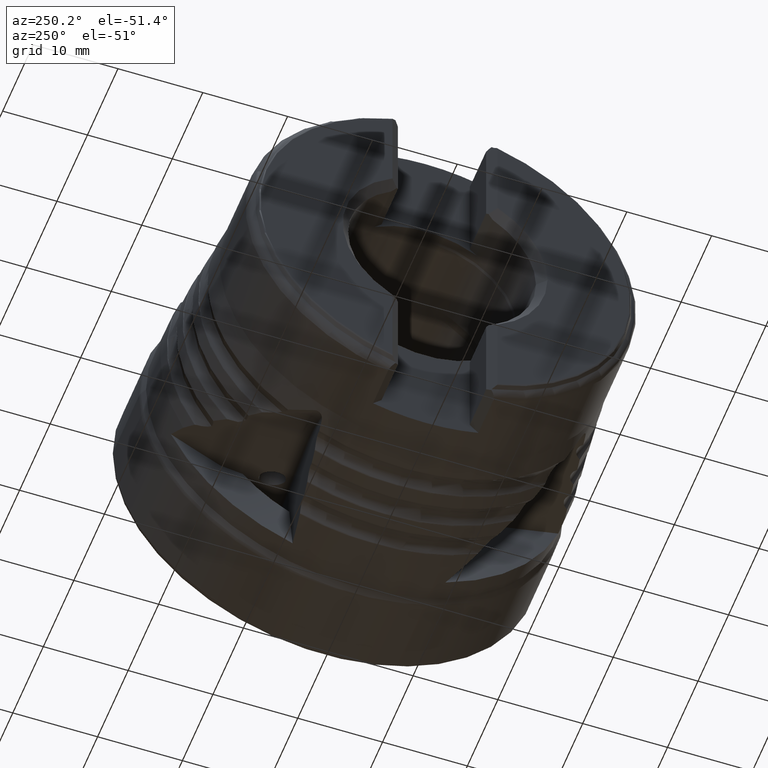
[diagram: clean part render]
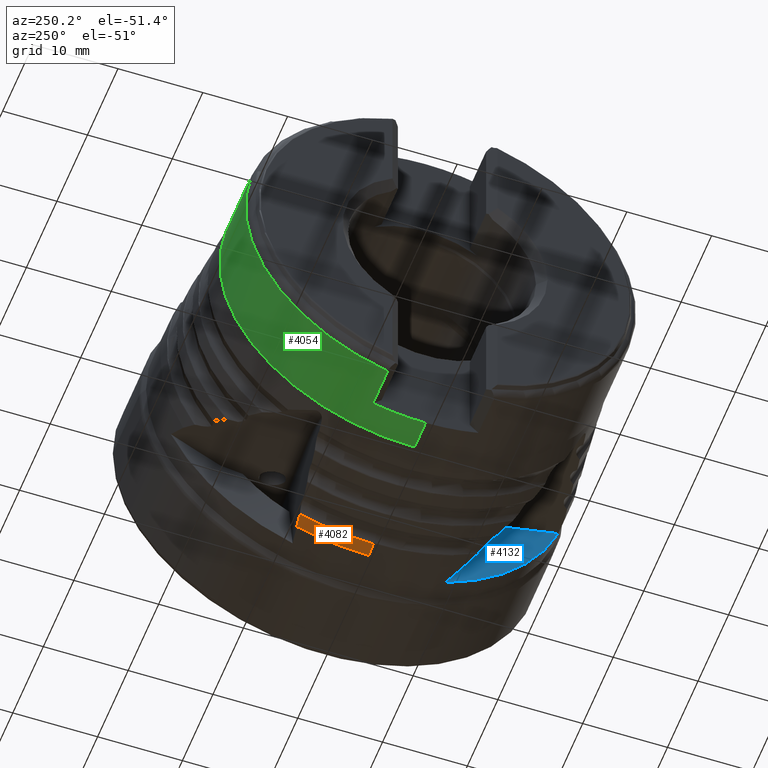
[diagram: same view with three faces highlighted in distinct colors, each labeled with its STEP entity id]
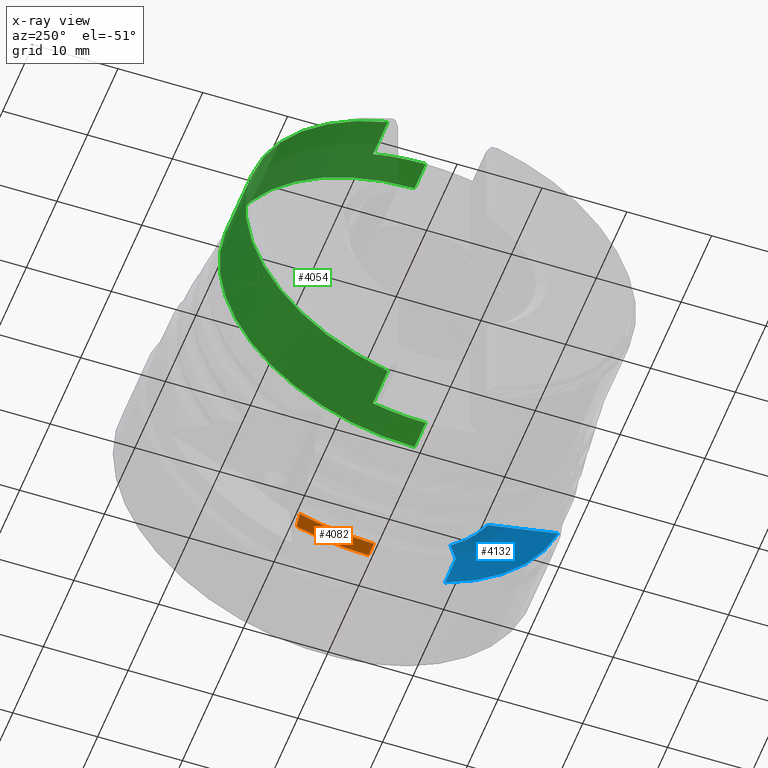
[diagram: x-ray of the same camera — body ghosted, the three highlighted faces saturated]
A machine part, auxiliary view with three faces highlighted in distinct colors.
The next image is the same camera in x-ray (body ghosted, the three faces saturated) — at least one of them is partly hidden behind the body in this view.
Their STEP definitions:

[orange] entity #4082 — the highlighted conical surface has half-angle 5.994 deg.
#51 = DIRECTION ( 'NONE',  ( 1.000000000000000000, -0.0000000000000000000, -0.0000000000000000000 ) ) ;
#117 = DIRECTION ( 'NONE',  ( 0.0000000000000000000, 0.0000000000000000000, -1.000000000000000000 ) ) ;
#225 = CARTESIAN_POINT ( 'NONE',  ( -13.24999999999999800, 0.0000000000000000000, 0.0000000000000000000 ) ) ;
#1017 = CARTESIAN_POINT ( 'NONE',  ( -14.85037459597313800, 0.0000000000000000000, 0.0000000000000000000 ) ) ;
#1019 = DIRECTION ( 'NONE',  ( 1.000000000000000000, -0.0000000000000000000, -0.0000000000000000000 ) ) ;
#1020 = DIRECTION ( 'NONE',  ( 0.0000000000000000000, 0.0000000000000000000, -1.000000000000000000 ) ) ;
#1125 = EDGE_CURVE ( 'NONE', #4530, #4624, #3073, .T. ) ;
#1241 = EDGE_CURVE ( 'NONE', #4624, #3803, #5999, .T. ) ;
#1885 = CARTESIAN_POINT ( 'NONE',  ( -14.85037459597314900, 8.707415521073281500, -22.80089129758956900 ) ) ;
#2139 = FACE_OUTER_BOUND ( 'NONE', #3028, .T. ) ;
#2141 = DIRECTION ( 'NONE',  ( 0.0000000000000000000, 0.0000000000000000000, -1.000000000000000000 ) ) ;
#2143 = CARTESIAN_POINT ( 'NONE',  ( -13.24999999999999800, 0.0000000000000000000, 0.0000000000000000000 ) ) ;
#2144 = DIRECTION ( 'NONE',  ( 1.000000000000000000, -0.0000000000000000000, -0.0000000000000000000 ) ) ;
#3028 = EDGE_LOOP ( 'NONE', ( #5594, #5584, #5321, #5596 ) ) ;
#3073 = CIRCLE ( 'NONE', #3080, 24.57499999999999900 ) ;
#3080 = AXIS2_PLACEMENT_3D ( 'NONE', #225, #51, #117 ) ;
#3305 = CIRCLE ( 'NONE', #3306, 24.40696066742281900 ) ;
#3306 = AXIS2_PLACEMENT_3D ( 'NONE', #1017, #1019, #1020 ) ;
#3566 = VECTOR ( 'NONE', #6466, 1000.000000000000000 ) ;
#3803 = VERTEX_POINT ( 'NONE', #1885 ) ;
#4082 = ADVANCED_FACE ( 'NONE', ( #2139 ), #4918, .T. ) ;
#4233 = EDGE_CURVE ( 'NONE', #4755, #3803, #3305, .T. ) ;
#4397 = EDGE_CURVE ( 'NONE', #4755, #4530, #6463, .T. ) ;
#4530 = VERTEX_POINT ( 'NONE', #6842 ) ;
#4624 = VERTEX_POINT ( 'NONE', #6925 ) ;
#4755 = VERTEX_POINT ( 'NONE', #7048 ) ;
#4918 = CONICAL_SURFACE ( 'NONE', #4919, 24.57499999999999900, 0.1046166576325194700 ) ;
#4919 = AXIS2_PLACEMENT_3D ( 'NONE', #2143, #2144, #2141 ) ;
#5321 = ORIENTED_EDGE ( 'NONE', *, *, #1241, .F. ) ;
#5584 = ORIENTED_EDGE ( 'NONE', *, *, #4233, .T. ) ;
#5594 = ORIENTED_EDGE ( 'NONE', *, *, #4397, .F. ) ;
#5596 = ORIENTED_EDGE ( 'NONE', *, *, #1125, .F. ) ;
#5750 = CARTESIAN_POINT ( 'NONE',  ( -14.85037459597314900, 8.707415521073281500, -22.80089129758956900 ) ) ;
#5752 = CARTESIAN_POINT ( 'NONE',  ( -14.31998503656541300, 8.632874129676684700, -22.88897156336772200 ) ) ;
#5850 = CARTESIAN_POINT ( 'NONE',  ( -13.24999999999999800, 8.482497539518695000, -23.06464524964689400 ) ) ;
#5887 = CARTESIAN_POINT ( 'NONE',  ( -13.78652494861643500, 8.557901203635918100, -22.97688985875644700 ) ) ;
#5999 =( BOUNDED_CURVE ( )  B_SPLINE_CURVE ( 3, ( #5850, #5887, #5752, #5750 ),
 .UNSPECIFIED., .F., .T. ) 
 B_SPLINE_CURVE_WITH_KNOTS ( ( 4, 4 ),
 ( 2.622664883302792600, 2.629184008231002100 ),
 .UNSPECIFIED. ) 
 CURVE ( )  GEOMETRIC_REPRESENTATION_ITEM ( )  RATIONAL_B_SPLINE_CURVE ( ( 1.000000000000000000, 0.9999964584206498800, 0.9999964584206498800, 1.000000000000000000 ) ) 
 REPRESENTATION_ITEM ( '' )  );
#6463 = LINE ( 'NONE', #6465, #3566 ) ;
#6465 = CARTESIAN_POINT ( 'NONE',  ( -13.24999999999999800, 0.0000000000000000000, -24.57499999999999900 ) ) ;
#6466 = DIRECTION ( 'NONE',  ( 0.9945326667047195100, 0.0000000000000000000, -0.1044259300039953000 ) ) ;
#6842 = CARTESIAN_POINT ( 'NONE',  ( -13.24999999999999800, 0.0000000000000000000, -24.57499999999999900 ) ) ;
#6925 = CARTESIAN_POINT ( 'NONE',  ( -13.24999999999999800, 8.482497539518695000, -23.06464524964689400 ) ) ;
#7048 = CARTESIAN_POINT ( 'NONE',  ( -14.85037459597313800, 0.0000000000000000000, -24.40696066742281900 ) ) ;

[blue] entity #4132 — the highlighted conical surface has half-angle 76.692 deg.
#510 = DIRECTION ( 'NONE',  ( 1.994636483349029900E-016, -1.000000000000000000, 0.0000000000000000000 ) ) ;
#511 = CARTESIAN_POINT ( 'NONE',  ( -9.249831501240239000, -1.699793255195587400E-015, 0.0000000000000000000 ) ) ;
#512 = FACE_OUTER_BOUND ( 'NONE', #3517, .T. ) ;
#513 = DIRECTION ( 'NONE',  ( -1.000000000000000000, -1.837647804684523300E-016, 0.0000000000000000000 ) ) ;
#842 = CARTESIAN_POINT ( 'NONE',  ( -10.94843701026711700, -9.865082947663816900, -22.50801553748602800 ) ) ;
#843 = CARTESIAN_POINT ( 'NONE',  ( -10.54843722114352300, -10.39052280309547300, -20.43136244012167400 ) ) ;
#849 = CARTESIAN_POINT ( 'NONE',  ( -10.17286608480709000, -10.92799351553216200, -18.35366992663220000 ) ) ;
#850 = CARTESIAN_POINT ( 'NONE',  ( -9.847697884642899500, -11.49028714894632800, -16.27383281576901200 ) ) ;
#1171 = EDGE_CURVE ( 'NONE', #4711, #6078, #3275, .T. ) ;
#1210 = EDGE_CURVE ( 'NONE', #6124, #3854, #3109, .T. ) ;
#1272 = EDGE_CURVE ( 'NONE', #6124, #4601, #3287, .T. ) ;
#1395 = EDGE_CURVE ( 'NONE', #4601, #4711, #4774, .T. ) ;
#1934 = CARTESIAN_POINT ( 'NONE',  ( -10.94843701026711700, -9.865082947663816900, -22.50801553748602800 ) ) ;
#2438 = DIRECTION ( 'NONE',  ( 1.000000000000000000, 1.837647804684523300E-016, -0.0000000000000000000 ) ) ;
#2440 = CARTESIAN_POINT ( 'NONE',  ( -9.249831501240239000, -1.699793255195587400E-015, 0.0000000000000000000 ) ) ;
#2443 = DIRECTION ( 'NONE',  ( -1.994636483349029900E-016, 1.000000000000000000, 0.0000000000000000000 ) ) ;
#3109 = CIRCLE ( 'NONE', #3110, 24.57499999999999600 ) ;
#3110 = AXIS2_PLACEMENT_3D ( 'NONE', #3942, #3943, #3915 ) ;
#3187 = B_SPLINE_CURVE_WITH_KNOTS ( 'NONE', 3,
 ( #842, #843, #849, #850 ),
 .UNSPECIFIED., .F., .F.,
 ( 4, 4 ),
 ( 1.089292357051355200E-006, 0.006536910612463925900 ),
 .UNSPECIFIED. ) ;
#3275 = B_SPLINE_CURVE_WITH_KNOTS ( 'NONE', 3,
 ( #3972, #3963, #3977, #4005 ),
 .UNSPECIFIED., .F., .F.,
 ( 4, 4 ),
 ( 1.009171873679634600E-006, 0.002950027775403416900 ),
 .UNSPECIFIED. ) ;
#3287 = B_SPLINE_CURVE_WITH_KNOTS ( 'NONE', 3,
 ( #5688, #5949, #5947, #5911 ),
 .UNSPECIFIED., .F., .F.,
 ( 4, 4 ),
 ( 9.091867728187631100E-007, 0.007884826801722711800 ),
 .UNSPECIFIED. ) ;
#3517 = EDGE_LOOP ( 'NONE', ( #5041, #5165, #5068, #5239, #5244 ) ) ;
#3854 = VERTEX_POINT ( 'NONE', #1934 ) ;
#3915 = DIRECTION ( 'NONE',  ( -2.117668536289083300E-016, 1.000000000000000000, 0.0000000000000000000 ) ) ;
#3942 = CARTESIAN_POINT ( 'NONE',  ( -10.94843701026711900, -2.011937123664415700E-015, 0.0000000000000000000 ) ) ;
#3943 = DIRECTION ( 'NONE',  ( 1.000000000000000000, 1.837647804684523300E-016, -0.0000000000000000000 ) ) ;
#3963 = CARTESIAN_POINT ( 'NONE',  ( -9.444647694032756400, -11.20798271432414200, -14.37039879415960700 ) ) ;
#3972 = CARTESIAN_POINT ( 'NONE',  ( -9.249831501240237200, -11.06954732527783500, -13.41686313321636300 ) ) ;
#3977 = CARTESIAN_POINT ( 'NONE',  ( -9.644537763475831600, -11.34847281373037100, -15.32255902798102400 ) ) ;
#4005 = CARTESIAN_POINT ( 'NONE',  ( -9.847697884642899500, -11.49028714894632800, -16.27383281576901200 ) ) ;
#4132 = ADVANCED_FACE ( 'NONE', ( #512 ), #4999, .F. ) ;
#4206 = EDGE_CURVE ( 'NONE', #3854, #6078, #3187, .T. ) ;
#4601 = VERTEX_POINT ( 'NONE', #6904 ) ;
#4711 = VERTEX_POINT ( 'NONE', #7013 ) ;
#4774 = CIRCLE ( 'NONE', #4776, 17.39388094480429500 ) ;
#4776 = AXIS2_PLACEMENT_3D ( 'NONE', #2440, #2438, #2443 ) ;
#4999 = CONICAL_SURFACE ( 'NONE', #5000, 17.39388094480429500, 1.338527625122639900 ) ;
#5000 = AXIS2_PLACEMENT_3D ( 'NONE', #511, #513, #510 ) ;
#5041 = ORIENTED_EDGE ( 'NONE', *, *, #1210, .F. ) ;
#5068 = ORIENTED_EDGE ( 'NONE', *, *, #1395, .T. ) ;
#5165 = ORIENTED_EDGE ( 'NONE', *, *, #1272, .T. ) ;
#5239 = ORIENTED_EDGE ( 'NONE', *, *, #1171, .T. ) ;
#5244 = ORIENTED_EDGE ( 'NONE', *, *, #4206, .F. ) ;
#5688 = CARTESIAN_POINT ( 'NONE',  ( -10.94843701026711500, -23.18104376225869600, -8.159033955821414000 ) ) ;
#5911 = CARTESIAN_POINT ( 'NONE',  ( -9.249831501240235500, -15.48598642620871000, -7.920310519752716200 ) ) ;
#5947 = CARTESIAN_POINT ( 'NONE',  ( -9.799121603711856900, -18.05481236139974800, -7.997508209247834900 ) ) ;
#5949 = CARTESIAN_POINT ( 'NONE',  ( -10.37034497178684600, -20.61870112903439200, -8.077788418198595700 ) ) ;
#6078 = VERTEX_POINT ( 'NONE', #7076 ) ;
#6124 = VERTEX_POINT ( 'NONE', #7081 ) ;
#6904 = CARTESIAN_POINT ( 'NONE',  ( -9.249831501240235500, -15.48598642620871000, -7.920310519752716200 ) ) ;
#7013 = CARTESIAN_POINT ( 'NONE',  ( -9.249831501240237200, -11.06954732527783500, -13.41686313321636300 ) ) ;
#7076 = CARTESIAN_POINT ( 'NONE',  ( -9.847697884642899500, -11.49028714894632800, -16.27383281576901200 ) ) ;
#7081 = CARTESIAN_POINT ( 'NONE',  ( -10.94843701026711500, -23.18104376225869600, -8.159033955821414000 ) ) ;

[green] entity #4054 — the highlighted cylindrical surface (partial cylindrical patch) has radius 23 mm, axis along (1, -0, -0).
#11 = DIRECTION ( 'NONE',  ( 0.0000000000000000000, 0.0000000000000000000, -1.000000000000000000 ) ) ;
#18 = CARTESIAN_POINT ( 'NONE',  ( -28.24999999999999600, 0.0000000000000000000, 0.0000000000000000000 ) ) ;
#32 = DIRECTION ( 'NONE',  ( 1.000000000000000000, -0.0000000000000000000, -0.0000000000000000000 ) ) ;
#82 = CARTESIAN_POINT ( 'NONE',  ( 9.758495738851982800E-016, 6.208772319603620600, -22.14613163248434100 ) ) ;
#89 = DIRECTION ( 'NONE',  ( 1.000000000000000000, -0.0000000000000000000, -0.0000000000000000000 ) ) ;
#94 = DIRECTION ( 'NONE',  ( 0.0000000000000000000, 0.0000000000000000000, 1.000000000000000000 ) ) ;
#131 = DIRECTION ( 'NONE',  ( 1.000000000000000000, -0.0000000000000000000, -0.0000000000000000000 ) ) ;
#145 = CARTESIAN_POINT ( 'NONE',  ( -31.90000000000004100, 0.0000000000000000000, 0.0000000000000000000 ) ) ;
#170 = DIRECTION ( 'NONE',  ( -1.000000000000000000, 0.0000000000000000000, 0.0000000000000000000 ) ) ;
#185 = LINE ( 'NONE', #340, #3477 ) ;
#188 = LINE ( 'NONE', #82, #6030 ) ;
#271 = DIRECTION ( 'NONE',  ( 1.000000000000000000, -0.0000000000000000000, -0.0000000000000000000 ) ) ;
#340 = CARTESIAN_POINT ( 'NONE',  ( 0.0000000000000000000, 0.0000000000000000000, -22.99999999999999300 ) ) ;
#988 = EDGE_CURVE ( 'NONE', #4700, #4670, #7147, .T. ) ;
#1028 = EDGE_CURVE ( 'NONE', #4534, #4727, #5962, .T. ) ;
#1059 = EDGE_CURVE ( 'NONE', #4534, #4750, #185, .T. ) ;
#1060 = EDGE_CURVE ( 'NONE', #4526, #4727, #188, .T. ) ;
#1062 = EDGE_CURVE ( 'NONE', #4750, #4659, #4867, .T. ) ;
#1334 = EDGE_CURVE ( 'NONE', #4526, #4670, #3725, .T. ) ;
#1399 = EDGE_CURVE ( 'NONE', #4545, #4700, #4777, .T. ) ;
#2004 = CARTESIAN_POINT ( 'NONE',  ( 0.0000000000000000000, 0.0000000000000000000, 0.0000000000000000000 ) ) ;
#2014 = DIRECTION ( 'NONE',  ( 1.000000000000000000, -0.0000000000000000000, -0.0000000000000000000 ) ) ;
#2019 = FACE_OUTER_BOUND ( 'NONE', #6086, .T. ) ;
#2020 = CYLINDRICAL_SURFACE ( 'NONE', #4842, 22.99999999999999300 ) ;
#2024 = DIRECTION ( 'NONE',  ( 0.0000000000000000000, 0.0000000000000000000, -1.000000000000000000 ) ) ;
#2321 = CARTESIAN_POINT ( 'NONE',  ( -36.75000000000000000, 0.0000000000000000000, 0.0000000000000000000 ) ) ;
#2322 = DIRECTION ( 'NONE',  ( 1.000000000000000000, -0.0000000000000000000, -0.0000000000000000000 ) ) ;
#2323 = DIRECTION ( 'NONE',  ( 0.0000000000000000000, 0.0000000000000000000, -1.000000000000000000 ) ) ;
#2456 = CARTESIAN_POINT ( 'NONE',  ( -31.90000000000004100, 0.0000000000000000000, 0.0000000000000000000 ) ) ;
#2458 = DIRECTION ( 'NONE',  ( -1.000000000000000000, 0.0000000000000000000, -0.0000000000000000000 ) ) ;
#2459 = DIRECTION ( 'NONE',  ( 0.0000000000000000000, 0.0000000000000000000, -1.000000000000000000 ) ) ;
#2720 = ORIENTED_EDGE ( 'NONE', *, *, #1060, .F. ) ;
#2817 = ORIENTED_EDGE ( 'NONE', *, *, #988, .F. ) ;
#2967 = ORIENTED_EDGE ( 'NONE', *, *, #1334, .T. ) ;
#3477 = VECTOR ( 'NONE', #89, 1000.000000000000000 ) ;
#3568 = VECTOR ( 'NONE', #6462, 1000.000000000000000 ) ;
#3725 = CIRCLE ( 'NONE', #3727, 22.99999999999999300 ) ;
#3727 = AXIS2_PLACEMENT_3D ( 'NONE', #2321, #2322, #2323 ) ;
#4054 = ADVANCED_FACE ( 'NONE', ( #2019 ), #2020, .T. ) ;
#4396 = EDGE_CURVE ( 'NONE', #4545, #4659, #6460, .T. ) ;
#4526 = VERTEX_POINT ( 'NONE', #6839 ) ;
#4534 = VERTEX_POINT ( 'NONE', #6825 ) ;
#4539 = ORIENTED_EDGE ( 'NONE', *, *, #4396, .T. ) ;
#4545 = VERTEX_POINT ( 'NONE', #6854 ) ;
#4554 = ORIENTED_EDGE ( 'NONE', *, *, #1062, .F. ) ;
#4565 = ORIENTED_EDGE ( 'NONE', *, *, #1399, .F. ) ;
#4606 = ORIENTED_EDGE ( 'NONE', *, *, #1059, .F. ) ;
#4659 = VERTEX_POINT ( 'NONE', #6954 ) ;
#4670 = VERTEX_POINT ( 'NONE', #6966 ) ;
#4699 = ORIENTED_EDGE ( 'NONE', *, *, #1028, .T. ) ;
#4700 = VERTEX_POINT ( 'NONE', #7002 ) ;
#4727 = VERTEX_POINT ( 'NONE', #7022 ) ;
#4750 = VERTEX_POINT ( 'NONE', #7043 ) ;
#4777 = CIRCLE ( 'NONE', #4778, 22.99999999999999300 ) ;
#4778 = AXIS2_PLACEMENT_3D ( 'NONE', #2456, #2458, #2459 ) ;
#4842 = AXIS2_PLACEMENT_3D ( 'NONE', #2004, #2014, #2024 ) ;
#4865 = AXIS2_PLACEMENT_3D ( 'NONE', #145, #131, #94 ) ;
#4867 = CIRCLE ( 'NONE', #6235, 22.99999999999999300 ) ;
#5962 = CIRCLE ( 'NONE', #4865, 22.99999999999999300 ) ;
#5969 = VECTOR ( 'NONE', #170, 1000.000000000000000 ) ;
#6030 = VECTOR ( 'NONE', #271, 1000.000000000000000 ) ;
#6086 = EDGE_LOOP ( 'NONE', ( #4565, #4539, #4554, #4606, #4699, #2720, #2967, #2817 ) ) ;
#6235 = AXIS2_PLACEMENT_3D ( 'NONE', #18, #32, #11 ) ;
#6460 = LINE ( 'NONE', #6461, #3568 ) ;
#6461 = CARTESIAN_POINT ( 'NONE',  ( 0.0000000000000000000, 2.816687638038911600E-015, 22.99999999999999300 ) ) ;
#6462 = DIRECTION ( 'NONE',  ( 1.000000000000000000, -0.0000000000000000000, -0.0000000000000000000 ) ) ;
#6825 = CARTESIAN_POINT ( 'NONE',  ( -31.90000000000004100, 0.0000000000000000000, -22.99999999999999300 ) ) ;
#6839 = CARTESIAN_POINT ( 'NONE',  ( -36.75000000000000000, 6.208772319603619700, -22.14613163248434100 ) ) ;
#6854 = CARTESIAN_POINT ( 'NONE',  ( -31.90000000000004100, 2.816687638038911600E-015, 22.99999999999999300 ) ) ;
#6954 = CARTESIAN_POINT ( 'NONE',  ( -28.24999999999999600, 2.835392799705802600E-015, 22.99999999999999300 ) ) ;
#6966 = CARTESIAN_POINT ( 'NONE',  ( -36.75000000000000000, 6.208772319603625100, 22.14613163248434100 ) ) ;
#7002 = CARTESIAN_POINT ( 'NONE',  ( -31.90000000000004100, 6.208772319603620600, 22.14613163248433700 ) ) ;
#7022 = CARTESIAN_POINT ( 'NONE',  ( -31.90000000000004100, 6.208772319603618900, -22.14613163248434100 ) ) ;
#7043 = CARTESIAN_POINT ( 'NONE',  ( -28.24999999999999600, 0.0000000000000000000, -22.99999999999999300 ) ) ;
#7143 = CARTESIAN_POINT ( 'NONE',  ( 9.758495738851980900E-016, 6.208772319603626000, 22.14613163248433700 ) ) ;
#7147 = LINE ( 'NONE', #7143, #5969 ) ;